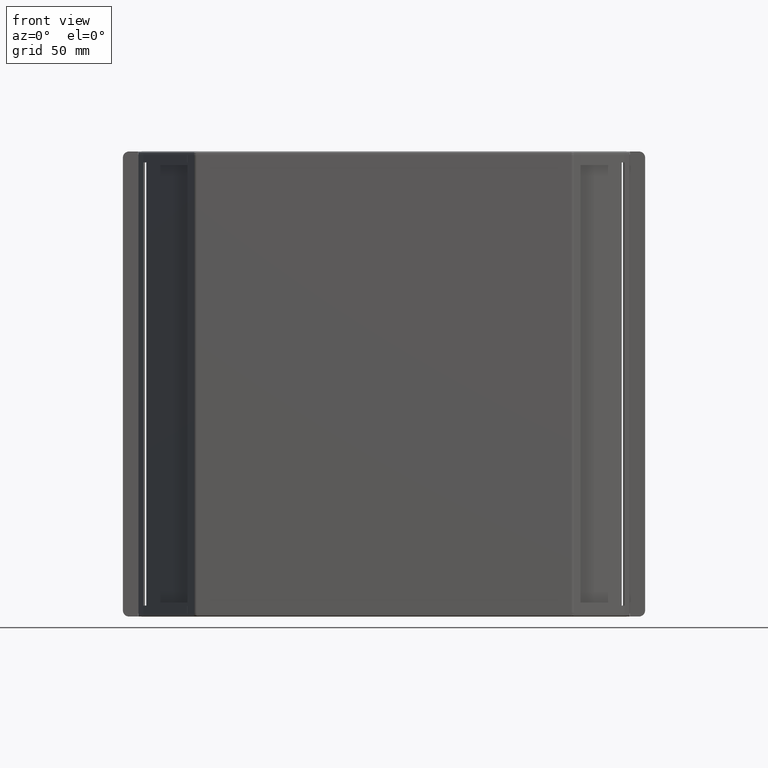
[diagram: clean part render]
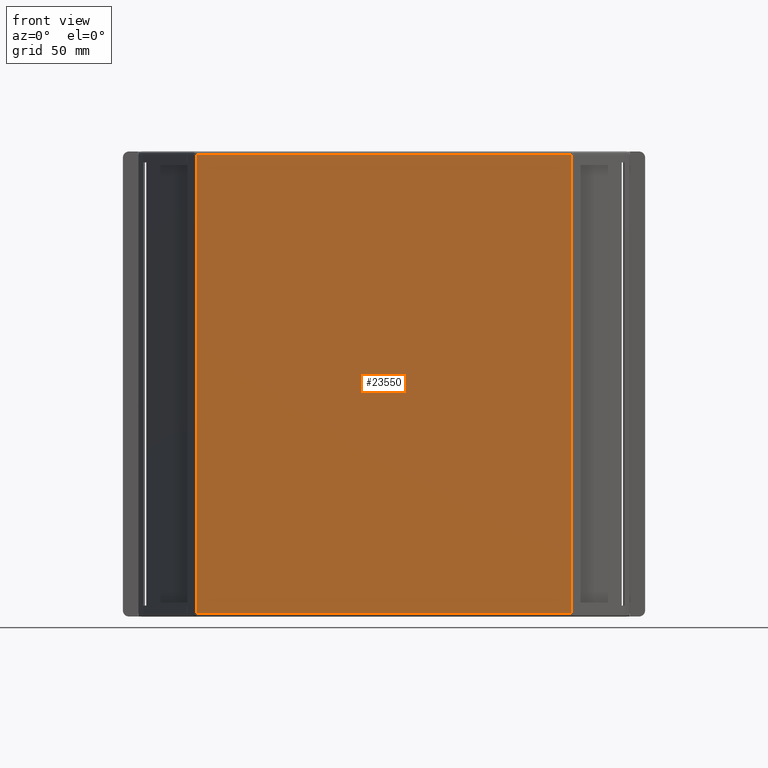
[diagram: same view with one face highlighted and labeled with its STEP entity id]
A machine part, front view. The second image highlights one B-rep face of the part: STEP entity #23550.
In plain terms, the highlighted planar face has unit normal (-0, -1, 0).
Its self-contained STEP definition (entity closure, byte-faithful):
#1521=PLANE('',#24917);
#1973=FACE_OUTER_BOUND('',#3289,.T.);
#3289=EDGE_LOOP('',(#15061,#15062,#15063,#15064));
#4725=LINE('',#32485,#6621);
#4726=LINE('',#32488,#6622);
#4727=LINE('',#32490,#6623);
#4728=LINE('',#32491,#6624);
#6621=VECTOR('',#26929,10.);
#6622=VECTOR('',#26932,10.);
#6623=VECTOR('',#26933,10.);
#6624=VECTOR('',#26934,10.);
#9153=VERTEX_POINT('',#32481);
#9154=VERTEX_POINT('',#32483);
#9155=VERTEX_POINT('',#32487);
#9156=VERTEX_POINT('',#32489);
#11447=EDGE_CURVE('',#9154,#9153,#4725,.T.);
#11448=EDGE_CURVE('',#9153,#9155,#4726,.T.);
#11449=EDGE_CURVE('',#9156,#9154,#4727,.T.);
#11450=EDGE_CURVE('',#9156,#9155,#4728,.T.);
#15061=ORIENTED_EDGE('',*,*,#11448,.F.);
#15062=ORIENTED_EDGE('',*,*,#11447,.F.);
#15063=ORIENTED_EDGE('',*,*,#11449,.F.);
#15064=ORIENTED_EDGE('',*,*,#11450,.T.);
#23550=ADVANCED_FACE('',(#1973),#1521,.T.);
#24917=AXIS2_PLACEMENT_3D('',#32486,#26930,#26931);
#26929=DIRECTION('',(0.,0.,-1.));
#26930=DIRECTION('center_axis',(-1.22464679914735E-16,-1.,0.));
#26931=DIRECTION('ref_axis',(0.,0.,1.));
#26932=DIRECTION('',(-1.,1.22464679914735E-16,0.));
#26933=DIRECTION('',(1.,-1.22464679914735E-16,0.));
#26934=DIRECTION('',(0.,0.,-1.));
#32481=CARTESIAN_POINT('',(120.894882233485,-68.98,1.99999999999999));
#32483=CARTESIAN_POINT('',(120.894882233485,-68.98,297.9));
#32485=CARTESIAN_POINT('',(120.894882233485,-68.98,149.95));
#32486=CARTESIAN_POINT('Origin',(120.894882233485,-68.98,149.95));
#32487=CARTESIAN_POINT('',(-120.894882233485,-68.98,1.99999999999999));
#32488=CARTESIAN_POINT('',(60.4474412037526,-68.98,1.99999999999999));
#32489=CARTESIAN_POINT('',(-120.894882233485,-68.98,297.9));
#32490=CARTESIAN_POINT('',(60.4474412037526,-68.98,297.9));
#32491=CARTESIAN_POINT('',(-120.894882233485,-68.98,149.95));